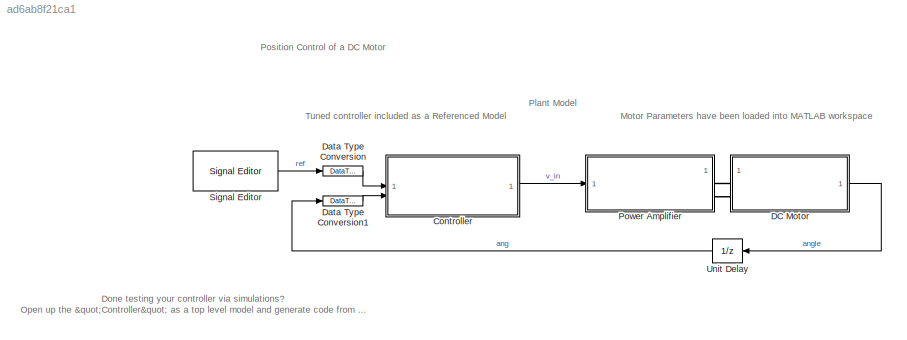
MODEL slx_ad6ab8f21ca1
KIND model
CONFIG AbsTol = auto
CONFIG EnableMultiTasking = off
CONFIG FixedStep = auto
CONFIG MaxStep = auto
CONFIG MinStep = auto
CONFIG PostLoadFcn = addpath GeneratedArtifacts/CodeGen\nload('dcmtr_params');
CONFIG RelTol = 1e-3
CONFIG SampleTimeConstraint = Unconstrained
CONFIG SolverName = ode15s
CONFIG StartTime = 0.0
CONFIG StopTime = 10
BLOCK [ModelReference] Controller
  ModelNameDialog = dcmtrCtrl_PID
  ModelReferenceVersion = 3.0
BLOCK [SubSystem] DC Motor
  ReferencedSubsystem = dcmtr
BLOCK [DataTypeConversion] Data Type Conversion
  OutDataTypeStr = single
  RndMeth = Floor
  SaturateOnIntegerOverflow = off
BLOCK [DataTypeConversion] Data Type Conversion1
  OutDataTypeStr = single
  RndMeth = Floor
  SaturateOnIntegerOverflow = off
BLOCK [SubSystem] Power Amplifier
  ReferencedSubsystem = powerAmp
BLOCK [Reference] Signal Editor  REF=SignalEditorBlockLib/Signal Editor
  SourceBlock = SignalEditorBlockLib/Signal Editor
  SourceType = SignalEditor
  UserDataPersistent = on
BLOCK [UnitDelay] Unit Delay
  HasFrameUpgradeWarning = on
  NameLocation = top
  SampleTime = Ts
ANNOTATION (root): Position Control of a DC Motor
ANNOTATION (root): Motor Parameters have been loaded into MATLAB workspace
ANNOTATION (root): Tuned controller included as a Referenced Model
ANNOTATION (root): Done testing your controller via simulations? Open up the "Controller" as a top level model and generate code from it using the Embedded Coder App .
ANNOTATION (root): Plant Model
LINE Controller:1 -> Power Amplifier:1
LINE DC Motor:1 -> Unit Delay:1
LINE Data Type Conversion1:1 -> Controller:2
LINE Data Type Conversion:1 -> Controller:1
LINE Signal Editor:1 -> Data Type Conversion:1
LINE Unit Delay:1 -> Data Type Conversion1:1
PLINE DC Motor:LConn1 -- Power Amplifier:RConn1
PLINE DC Motor:LConn2 -- Power Amplifier:RConn2
